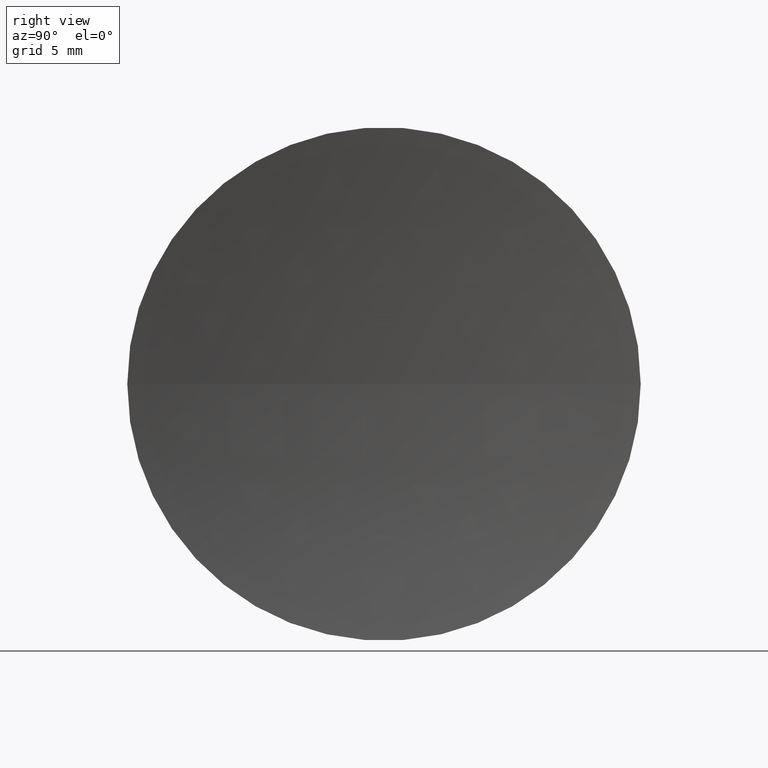
[diagram: clean part render]
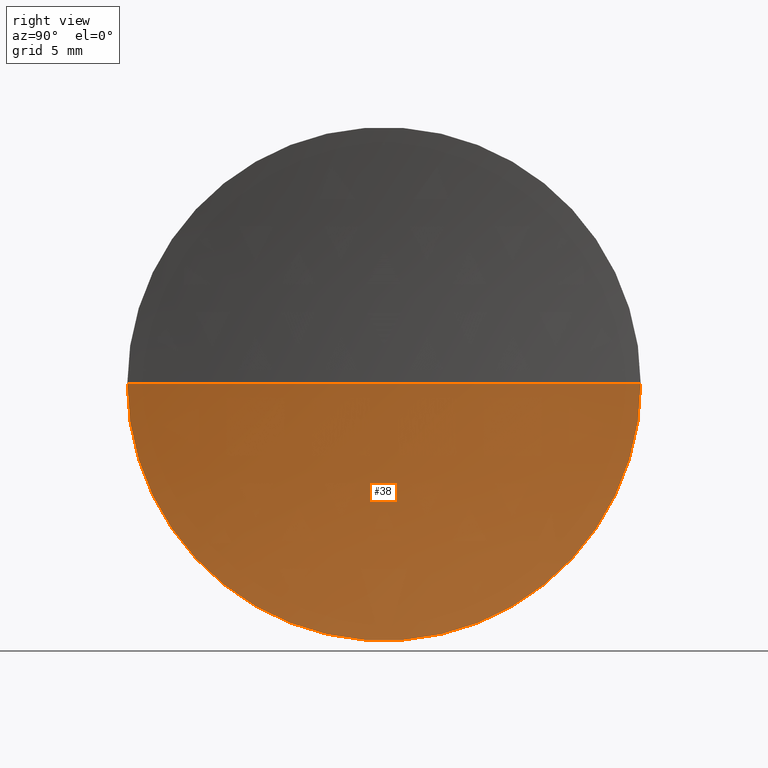
[diagram: same view with one face highlighted and labeled with its STEP entity id]
A machine part, right view. The second image highlights one B-rep face of the part: STEP entity #38.
In plain terms, the highlighted spherical surface has radius 121.5 mm.
Its self-contained STEP definition (entity closure, byte-faithful):
#2 = CARTESIAN_POINT ( 'NONE',  ( 249.9554213155559500, 65.21684047094143500, 0.0000000000000000000 ) ) ;
#4 = DIRECTION ( 'NONE',  ( 8.496118506040342700E-032, -1.224646799147353200E-016, 1.000000000000000000 ) ) ;
#18 = CARTESIAN_POINT ( 'NONE',  ( 129.9541739262057300, 65.21684047094034000, 0.0000000000000000000 ) ) ;
#27 = AXIS2_PLACEMENT_3D ( 'NONE', #18, #178, #146 ) ;
#29 = ORIENTED_EDGE ( 'NONE', *, *, #89, .F. ) ;
#30 = CARTESIAN_POINT ( 'NONE',  ( 129.9541739262057300, 84.24184047094027500, 2.329890535377707400E-015 ) ) ;
#31 = ORIENTED_EDGE ( 'NONE', *, *, #48, .F. ) ;
#32 = DIRECTION ( 'NONE',  ( -0.0000000000000000000, 0.0000000000000000000, 1.000000000000000000 ) ) ;
#35 = CARTESIAN_POINT ( 'NONE',  ( 249.9554213155559500, 65.21684047094143500, 0.0000000000000000000 ) ) ;
#37 = AXIS2_PLACEMENT_3D ( 'NONE', #2, #32, #58 ) ;
#38 = ADVANCED_FACE ( 'NONE', ( #159 ), #114, .F. ) ;
#40 = VERTEX_POINT ( 'NONE', #30 ) ;
#45 = DIRECTION ( 'NONE',  ( -1.000000000000000000, 0.0000000000000000000, 0.0000000000000000000 ) ) ;
#48 = EDGE_CURVE ( 'NONE', #40, #175, #50, .T. ) ;
#50 = CIRCLE ( 'NONE', #27, 19.02499999999995900 ) ;
#58 = DIRECTION ( 'NONE',  ( 6.853228547068869400E-016, -1.000000000000000000, 0.0000000000000000000 ) ) ;
#66 = AXIS2_PLACEMENT_3D ( 'NONE', #35, #4, #95 ) ;
#84 = AXIS2_PLACEMENT_3D ( 'NONE', #120, #92, #45 ) ;
#85 = ORIENTED_EDGE ( 'NONE', *, *, #171, .T. ) ;
#87 = EDGE_LOOP ( 'NONE', ( #31, #85, #29 ) ) ;
#89 = EDGE_CURVE ( 'NONE', #175, #107, #181, .T. ) ;
#92 = DIRECTION ( 'NONE',  ( 0.0000000000000000000, 0.0000000000000000000, -1.000000000000000000 ) ) ;
#95 = DIRECTION ( 'NONE',  ( 0.0000000000000000000, -1.000000000000000000, -1.224646799147353000E-016 ) ) ;
#107 = VERTEX_POINT ( 'NONE', #109 ) ;
#109 = CARTESIAN_POINT ( 'NONE',  ( 128.4554213155559800, 65.21684047094133500, 0.0000000000000000000 ) ) ;
#114 = SPHERICAL_SURFACE ( 'NONE', #37, 121.4999999999999700 ) ;
#120 = CARTESIAN_POINT ( 'NONE',  ( 249.9554213155559500, 65.21684047094143500, 0.0000000000000000000 ) ) ;
#146 = DIRECTION ( 'NONE',  ( 0.0000000000000000000, -1.000000000000000000, 0.0000000000000000000 ) ) ;
#159 = FACE_OUTER_BOUND ( 'NONE', #87, .T. ) ;
#171 = EDGE_CURVE ( 'NONE', #40, #107, #191, .T. ) ;
#175 = VERTEX_POINT ( 'NONE', #184 ) ;
#178 = DIRECTION ( 'NONE',  ( -1.000000000000000000, -6.937607244762875000E-016, -0.0000000000000000000 ) ) ;
#181 = CIRCLE ( 'NONE', #84, 121.4999999999999700 ) ;
#184 = CARTESIAN_POINT ( 'NONE',  ( 129.9541739262057300, 46.19184047094142200, 0.0000000000000000000 ) ) ;
#191 = CIRCLE ( 'NONE', #66, 121.4999999999999700 ) ;